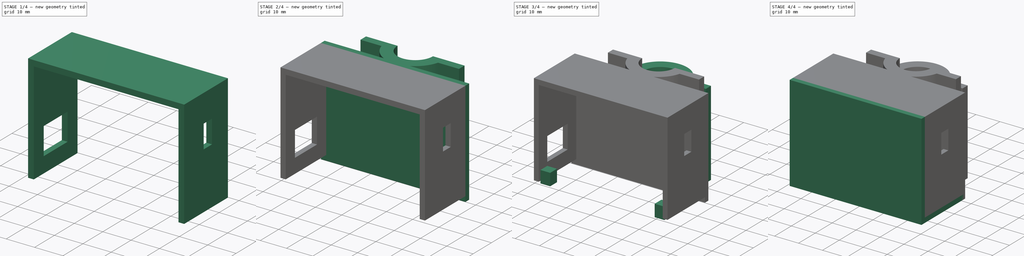
[diagram: build sequence overview — one tinted view per stage of 4, left to right]
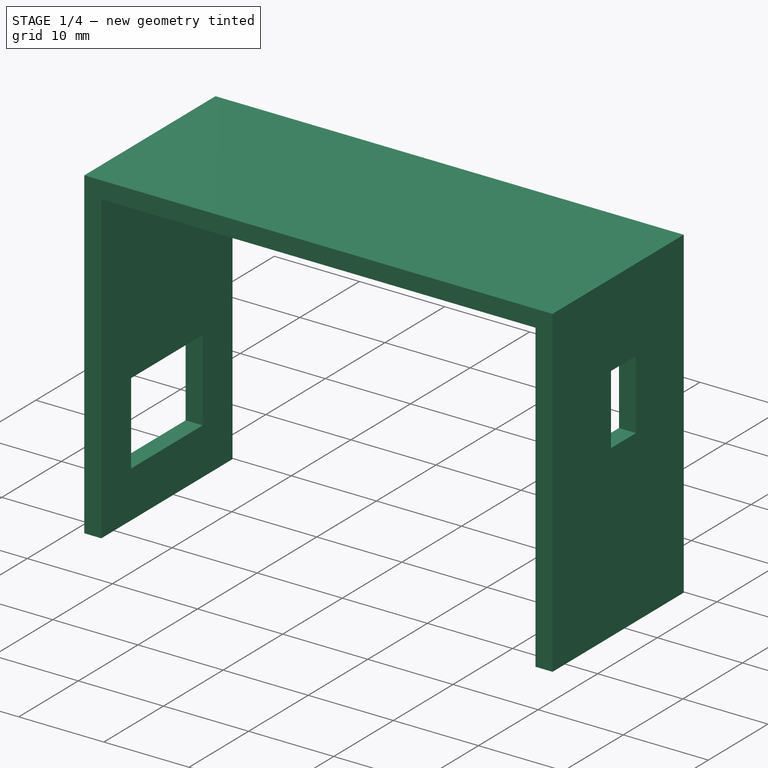
[diagram: stage 1 of 4 — iso view after this stage's code; geometry added in this stage tinted green]
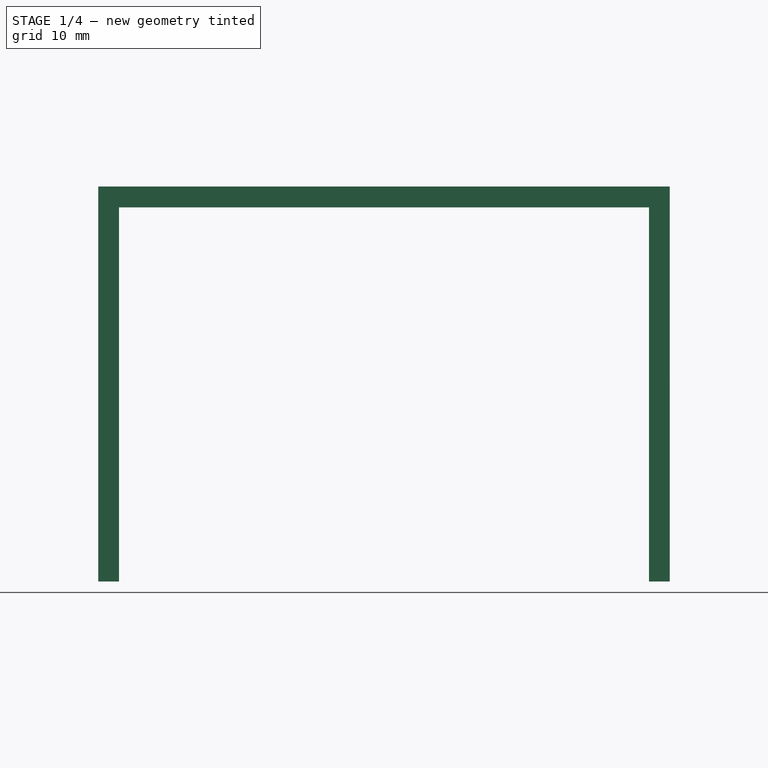
[diagram: stage 1 of 4 — front view after this stage's code; geometry added in this stage tinted green]
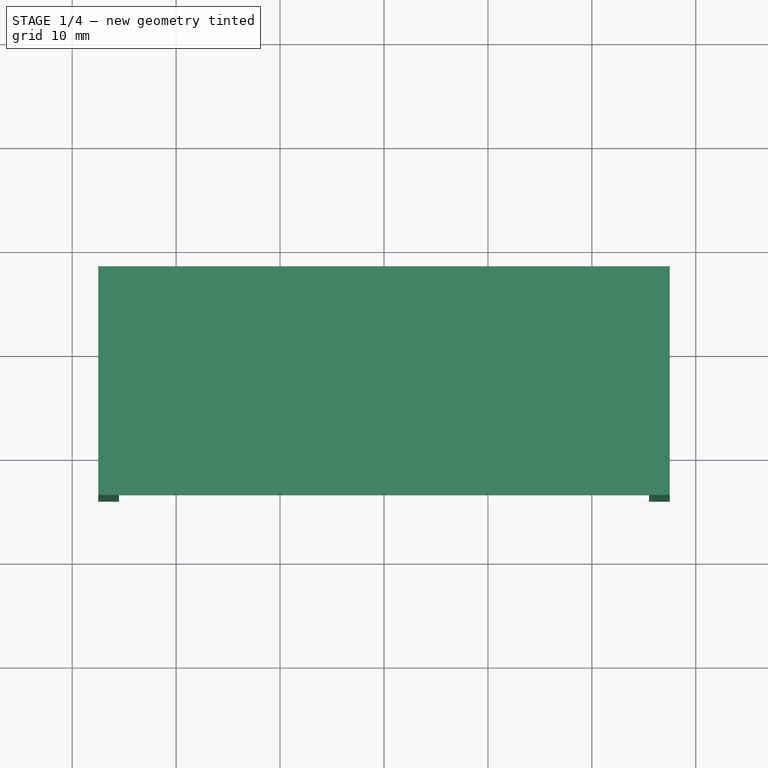
[diagram: stage 1 of 4 — top view after this stage's code; geometry added in this stage tinted green]
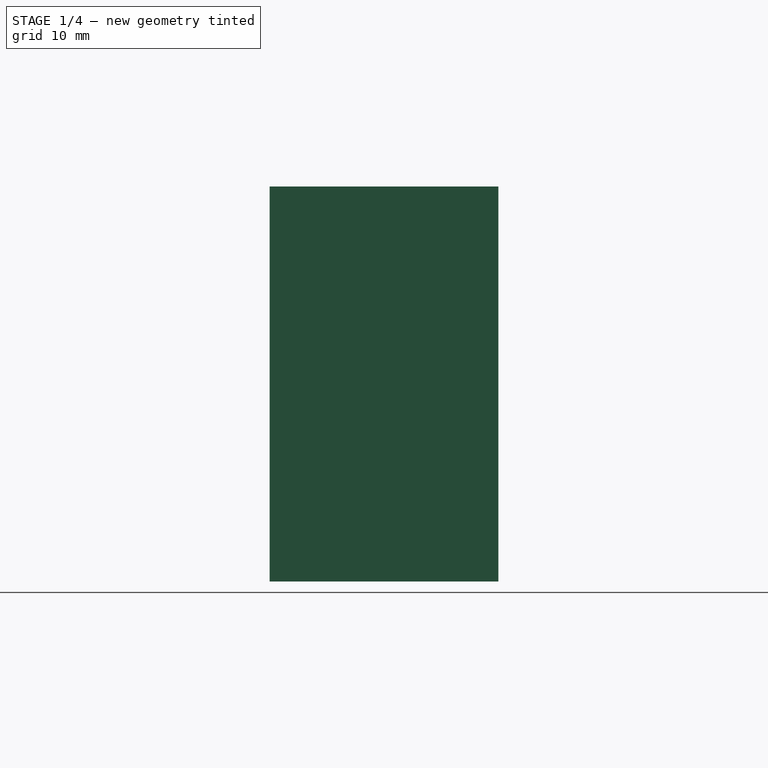
[diagram: stage 1 of 4 — right view after this stage's code; geometry added in this stage tinted green]
FCSTD DOCUMENT  (FreeCAD 0.14R3702 (Git))
Label: ikea lava lamp control box
License: CC-BY 3.0
LicenseURL: http://creativecommons.org/licenses/by/3.0/
objects: Sketcher::SketchObject×14, PartDesign::Pad×10, PartDesign::Pocket×3, App::DocumentObjectGroup×3
note: 40 computed .brp shape members not serialized (recipe doc carries the construction recipe); baked Part::Feature solids carry a one-line shape summary decoded from their .brp

FEATURE [App::DocumentObjectGroup] Group  label="Visible Stuff"
  Group = -> [Pad001,Pad002,Pad003,Pad004,Pad005,Pocket,Pocket002]
FEATURE [App::DocumentObjectGroup] Group001  label="Main"
  Group = -> [Pad,Pad006,Pocket001,Group]
FEATURE [Sketcher::SketchObject] Sketch011  label="cover bottom scetch"
  Placement = pos=(0,-23,38) rot=(0,0,1;0rad)
  sketch-geometry (4):
    g0: LineSegment StartX=-27.5 StartY=11 StartZ=0 EndX=27.5 EndY=11 EndZ=0
    g1: LineSegment StartX=27.5 StartY=11 StartZ=0 EndX=27.5 EndY=-11 EndZ=0
    g2: LineSegment StartX=27.5 StartY=-11 StartZ=0 EndX=-27.5 EndY=-11 EndZ=0
    g3: LineSegment StartX=-27.5 StartY=-11 StartZ=0 EndX=-27.5 EndY=11 EndZ=0
  constraints (12):
    c: Coincident(g0,g1)
    c: Coincident(g1,g2)
    c: Coincident(g2,g3)
    c: Coincident(g3,g0)
    c: Horizontal(g0)
    c: Horizontal(g2)
    c: Vertical(g1)
    c: Vertical(g3)
    c: DistanceY(g1) = -22
    c: DistanceX(g0) = 55
    c: Symmetric(g1,g0,g-1)
    c: Symmetric(g0,g0,g-2)
FEATURE [PartDesign::Pad] Pad007  label="cover bottom"
  Length = 2
  Length2 = 100
  Placement = pos=(0,-23,38) rot=(0,0,1;0rad)
  Sketch = -> Sketch011
  Type = 0
FEATURE [Sketcher::SketchObject] Sketch012  label="cover side usb sketch"
  Placement = pos=(25.5,-23,21) rot=(0.57735,0.57735,0.57735;2.0944rad)
  sketch-geometry (8):
    g0: LineSegment StartX=-11 StartY=19 StartZ=0 EndX=11 EndY=19 EndZ=0
    g1: LineSegment StartX=11 StartY=19 StartZ=0 EndX=11 EndY=-19 EndZ=0
    g2: LineSegment StartX=11 StartY=-19 StartZ=0 EndX=-11 EndY=-19 EndZ=0
    g3: LineSegment StartX=-11 StartY=-19 StartZ=0 EndX=-11 EndY=19 EndZ=0
    g4: LineSegment StartX=-1.2 StartY=9.2 StartZ=0 EndX=3 EndY=9.2 EndZ=0
    g5: LineSegment StartX=3 StartY=9.2 StartZ=0 EndX=3 EndY=1 EndZ=0
    g6: LineSegment StartX=-1.2 StartY=1 StartZ=0 EndX=-1.2 EndY=9.2 EndZ=0
    g7: LineSegment StartX=-1.2 StartY=1 StartZ=0 EndX=3 EndY=1 EndZ=0
  constraints (24):
    c: Coincident(g0,g1)
    c: Coincident(g1,g2)
    c: Coincident(g2,g3)
    c: Coincident(g3,g0)
    c: Horizontal(g0)
    c: Horizontal(g2)
    c: Vertical(g1)
    c: Vertical(g3)
    c: DistanceX(g2) = -22
    c: DistanceY(g1) = -38
    c: Symmetric(g1,g0,g-1)
    c: Symmetric(g1,g2,g-2)
    c: Coincident(g4,g5)
    c: Coincident(g6,g4)
    c: Horizontal(g4)
    c: Vertical(g5)
    c: Vertical(g6)
    c: DistanceY(g5,g1) = -20
    c: DistanceY(g5) = -8.2
    c: DistanceX(g5,g1) = 8
    c: DistanceX(g4) = 4.2
    c: Coincident(g7,g6)
    c: Coincident(g7,g5)
    c: Horizontal(g7)
FEATURE [PartDesign::Pad] Pad008  label="cover side usb"
  Length = 2
  Length2 = 100
  Placement = pos=(25.5,-23,21) rot=(0.57735,0.57735,0.57735;2.0944rad)
  Sketch = -> Sketch012
  Type = 0
FEATURE [Sketcher::SketchObject] Sketch013  label="cover side usb sketch001"
  Placement = pos=(25.5,-23,21) rot=(0.57735,0.57735,0.57735;2.0944rad)
  sketch-geometry (4):
    g0: LineSegment StartX=-11 StartY=19 StartZ=0 EndX=11 EndY=19 EndZ=0
    g1: LineSegment StartX=11 StartY=19 StartZ=0 EndX=11 EndY=-19 EndZ=0
    g2: LineSegment StartX=11 StartY=-19 StartZ=0 EndX=-11 EndY=-19 EndZ=0
    g3: LineSegment StartX=-11 StartY=-19 StartZ=0 EndX=-11 EndY=19 EndZ=0
  constraints (12):
    c: Coincident(g0,g1)
    c: Coincident(g1,g2)
    c: Coincident(g2,g3)
    c: Coincident(g3,g0)
    c: Horizontal(g0)
    c: Horizontal(g2)
    c: Vertical(g1)
    c: Vertical(g3)
    c: DistanceX(g2) = -22
    c: DistanceY(g1) = -38
    c: Symmetric(g1,g0,g-1)
    c: Symmetric(g1,g2,g-2)
FEATURE [App::DocumentObjectGroup] Group002  label="Cover"
  Group = -> [Sketch013]
FEATURE [Sketcher::SketchObject] Sketch014  label="cover side power sketch"
  Placement = pos=(-27.5,-23,21) rot=(0.57735,0.57735,0.57735;2.0944rad)
  sketch-geometry (8):
    g0: LineSegment StartX=-11 StartY=19 StartZ=0 EndX=11 EndY=19 EndZ=0
    g1: LineSegment StartX=11 StartY=19 StartZ=0 EndX=11 EndY=-19 EndZ=0
    g2: LineSegment StartX=11 StartY=-19 StartZ=0 EndX=-11 EndY=-19 EndZ=0
    g3: LineSegment StartX=-11 StartY=-19 StartZ=0 EndX=-11 EndY=19 EndZ=0
    g4: LineSegment StartX=-6 StartY=-3.9 StartZ=0 EndX=6 EndY=-3.9 EndZ=0
    g5: LineSegment StartX=6 StartY=-3.9 StartZ=0 EndX=6 EndY=-13.5 EndZ=0
    g6: LineSegment StartX=6 StartY=-13.5 StartZ=0 EndX=-6 EndY=-13.5 EndZ=0
    g7: LineSegment StartX=-6 StartY=-13.5 StartZ=0 EndX=-6 EndY=-3.9 EndZ=0
  constraints (24):
    c: Coincident(g0,g1)
    c: Coincident(g1,g2)
    c: Coincident(g2,g3)
    c: Coincident(g3,g0)
    c: Horizontal(g0)
    c: Horizontal(g2)
    c: Vertical(g1)
    c: Vertical(g3)
    c: DistanceX(g2) = -22
    c: DistanceY(g1) = -38
    c: Symmetric(g1,g0,g-1)
    c: Symmetric(g1,g2,g-2)
    c: Coincident(g4,g5)
    c: Coincident(g5,g6)
    c: Coincident(g6,g7)
    c: Coincident(g7,g4)
    c: Horizontal(g4)
    c: Horizontal(g6)
    c: Vertical(g5)
    c: Vertical(g7)
    c: DistanceY(g5,g1) = -5.5
    c: DistanceX(g5,g1) = 5
    c: DistanceY(g5) = -9.6
    c: DistanceX(g4) = 12
FEATURE [PartDesign::Pad] Pad009  label="cover side power"
  Length = 2
  Length2 = 100
  Placement = pos=(-27.5,-23,21) rot=(0.57735,0.57735,0.57735;2.0944rad)
  Sketch = -> Sketch014
  Type = 0
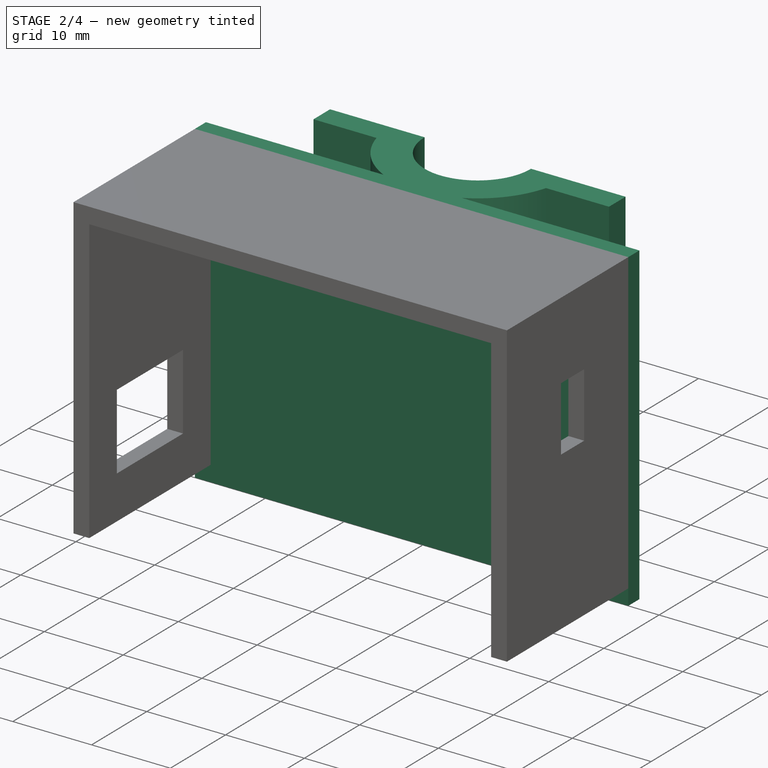
[diagram: stage 2 of 4 — iso view after this stage's code; geometry added in this stage tinted green]
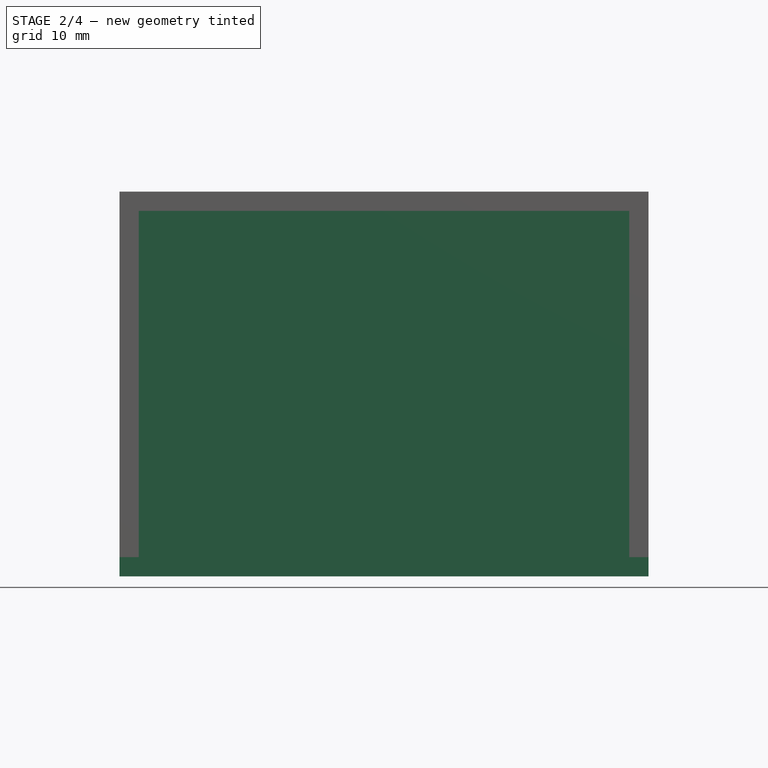
[diagram: stage 2 of 4 — front view after this stage's code; geometry added in this stage tinted green]
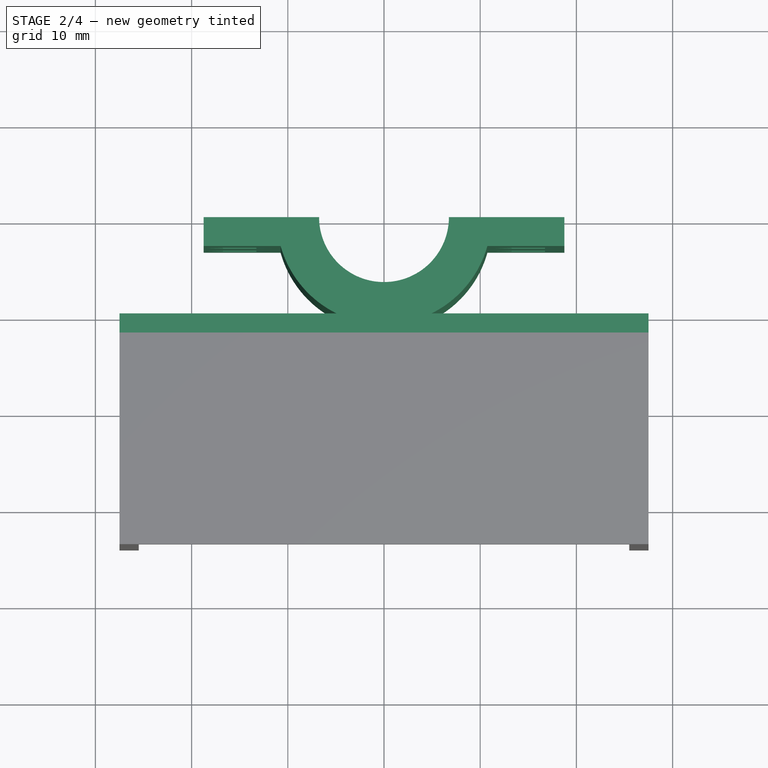
[diagram: stage 2 of 4 — top view after this stage's code; geometry added in this stage tinted green]
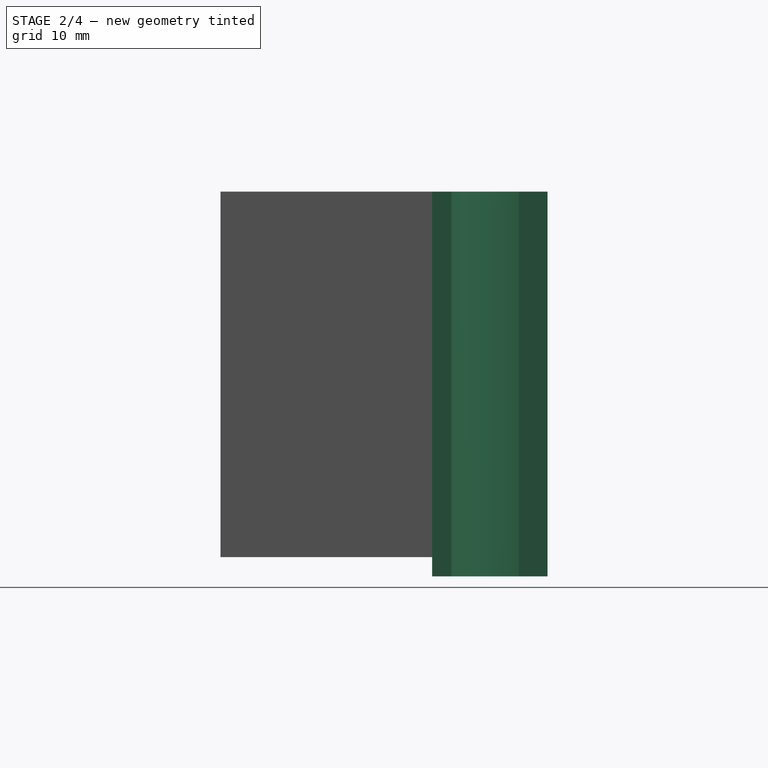
[diagram: stage 2 of 4 — right view after this stage's code; geometry added in this stage tinted green]
FEATURE [Sketcher::SketchObject] Sketch006  label="mounting screw holes"
  Placement = pos=(0,4,0) rot=(0,0.707107,0.707107;3.14159rad)
  Support = -> Pad [Face4]
  sketch-geometry (8):
    g0: Circle CenterX=15 CenterY=8.75 CenterZ=0 NormalX=0 NormalY=0 NormalZ=1 Radius=2
    g1: Circle CenterX=-15 CenterY=8.75 CenterZ=0 NormalX=0 NormalY=0 NormalZ=1 Radius=2
    g2: Circle CenterX=-15 CenterY=26.25 CenterZ=0 NormalX=0 NormalY=0 NormalZ=1 Radius=2
    g3: Circle CenterX=15 CenterY=26.25 CenterZ=0 NormalX=0 NormalY=0 NormalZ=1 Radius=2
    g4: LineSegment [constr] StartX=-15 StartY=26.25 StartZ=0 EndX=15 EndY=26.25 EndZ=0
    g5: LineSegment [constr] StartX=15 StartY=26.25 StartZ=0 EndX=15 EndY=8.75 EndZ=0
    g6: LineSegment [constr] StartX=15 StartY=8.75 StartZ=0 EndX=-15 EndY=8.75 EndZ=0
    g7: LineSegment [constr] StartX=-15 StartY=8.75 StartZ=0 EndX=-15 EndY=26.25 EndZ=0
  constraints (20):
    c: Coincident(g4,g5)
    c: Coincident(g5,g6)
    c: Coincident(g6,g7)
    c: Coincident(g7,g4)
    c: Horizontal(g4)
    c: Horizontal(g6)
    c: Vertical(g5)
    c: Vertical(g7)
    c: Symmetric(g5,g6,g-2)
    c: Coincident(g3,g4)
    c: Coincident(g0,g5)
    c: Coincident(g2,g4)
    c: Coincident(g1,g6)
    c: Equal(g3,g2)
    c: Equal(g2,g1)
    c: Equal(g1,g0)
    c: Radius(g3) = 2
    c: DistanceY(g5) = -17.5
    c: DistanceY(g-1,g0) = 8.75
    c: DistanceX(g6) = -30
FEATURE [PartDesign::Pad] Pad006  label="mount side pad"
  Length = 40
  Length2 = 100
  Sketch = -> Sketch001
  Type = 0
FEATURE [Sketcher::SketchObject] Sketch009  label="mounting screw holes001"
  Placement = pos=(0,-3,0) rot=(1,0,0;1.5708rad)
  Support = -> Pad006 [Face11]
  sketch-geometry (8):
    g0: Circle CenterX=15 CenterY=8.75 CenterZ=0 NormalX=0 NormalY=0 NormalZ=1 Radius=2
    g1: Circle CenterX=-15 CenterY=8.75 CenterZ=0 NormalX=0 NormalY=0 NormalZ=1 Radius=2
    g2: Circle CenterX=-15 CenterY=26.25 CenterZ=0 NormalX=0 NormalY=0 NormalZ=1 Radius=2
    g3: Circle CenterX=15 CenterY=26.25 CenterZ=0 NormalX=0 NormalY=0 NormalZ=1 Radius=2
    g4: LineSegment [constr] StartX=-15 StartY=26.25 StartZ=0 EndX=15 EndY=26.25 EndZ=0
    g5: LineSegment [constr] StartX=15 StartY=26.25 StartZ=0 EndX=15 EndY=8.75 EndZ=0
    g6: LineSegment [constr] StartX=15 StartY=8.75 StartZ=0 EndX=-15 EndY=8.75 EndZ=0
    g7: LineSegment [constr] StartX=-15 StartY=8.75 StartZ=0 EndX=-15 EndY=26.25 EndZ=0
  constraints (20):
    c: Coincident(g4,g5)
    c: Coincident(g5,g6)
    c: Coincident(g6,g7)
    c: Coincident(g7,g4)
    c: Horizontal(g4)
    c: Horizontal(g6)
    c: Vertical(g5)
    c: Vertical(g7)
    c: Symmetric(g5,g6,g-2)
    c: Coincident(g3,g4)
    c: Coincident(g0,g5)
    c: Coincident(g2,g4)
    c: Coincident(g1,g6)
    c: Equal(g3,g2)
    c: Equal(g2,g1)
    c: Equal(g1,g0)
    c: Radius(g3) = 2
    c: DistanceY(g5) = -17.5
    c: DistanceY(g-1,g0) = 8.75
    c: DistanceX(g6) = -30
FEATURE [PartDesign::Pocket] Pocket001  label="mount side pocket"
  Length = 3
  Sketch = -> Sketch009
  Type = 0
FEATURE [Sketcher::SketchObject] Sketch010  label="mounting nuts"
  Placement = pos=(0,-3,0) rot=(1,0,0;1.5708rad)
  Support = -> Pocket001 [Face9]
  sketch-geometry (32):
    g0: Circle [constr] CenterX=15 CenterY=8.75 CenterZ=0 NormalX=0 NormalY=0 NormalZ=1 Radius=3
    g1: Circle [constr] CenterX=-15 CenterY=8.75 CenterZ=0 NormalX=0 NormalY=0 NormalZ=1 Radius=3
    g2: Circle [constr] CenterX=-15 CenterY=26.25 CenterZ=0 NormalX=0 NormalY=0 NormalZ=1 Radius=3
    g3: Circle [constr] CenterX=15 CenterY=26.25 CenterZ=0 NormalX=0 NormalY=0 NormalZ=1 Radius=3
    g4: LineSegment [constr] StartX=-15 StartY=26.25 StartZ=0 EndX=15 EndY=26.25 EndZ=0
    g5: LineSegment [constr] StartX=15 StartY=26.25 StartZ=0 EndX=15 EndY=8.75 EndZ=0
    g6: LineSegment [constr] StartX=15 StartY=8.75 StartZ=0 EndX=-15 EndY=8.75 EndZ=0
    g7: LineSegment [constr] StartX=-15 StartY=8.75 StartZ=0 EndX=-15 EndY=26.25 EndZ=0
    g8: LineSegment StartX=-16.7321 StartY=29.25 StartZ=0 EndX=-13.2679 EndY=29.25 EndZ=0
    g9: LineSegment StartX=-13.2679 StartY=29.25 StartZ=0 EndX=-11.5359 EndY=26.25 EndZ=0
    g10: LineSegment StartX=-11.5359 StartY=26.25 StartZ=0 EndX=-13.2679 EndY=23.25 EndZ=0
    g11: LineSegment StartX=-13.2679 StartY=23.25 StartZ=0 EndX=-16.7321 EndY=23.25 EndZ=0
    g12: LineSegment StartX=-16.7321 StartY=23.25 StartZ=0 EndX=-18.4641 EndY=26.25 EndZ=0
    g13: LineSegment StartX=-18.4641 StartY=26.25 StartZ=0 EndX=-16.7321 EndY=29.25 EndZ=0
    g14: LineSegment StartX=11.5359 StartY=26.25 StartZ=0 EndX=13.2679 EndY=29.25 EndZ=0
    g15: LineSegment StartX=13.2679 StartY=29.25 StartZ=0 EndX=16.7321 EndY=29.25 EndZ=0
    g16: LineSegment StartX=16.7321 StartY=29.25 StartZ=0 EndX=18.4641 EndY=26.25 EndZ=0
    g17: LineSegment StartX=18.4641 StartY=26.25 StartZ=0 EndX=16.7321 EndY=23.25 EndZ=0
    g18: LineSegment StartX=16.7321 StartY=23.25 StartZ=0 EndX=13.2679 EndY=23.25 EndZ=0
    g19: LineSegment StartX=13.2679 StartY=23.25 StartZ=0 EndX=11.5359 EndY=26.25 EndZ=0
    g20: LineSegment StartX=13.2679 StartY=11.75 StartZ=0 EndX=16.7321 EndY=11.75 EndZ=0
    g21: LineSegment StartX=16.7321 StartY=11.75 StartZ=0 EndX=18.4641 EndY=8.75 EndZ=0
    g22: LineSegment StartX=18.4641 StartY=8.75 StartZ=0 EndX=16.7321 EndY=5.75 EndZ=0
    g23: LineSegment StartX=16.7321 StartY=5.75 StartZ=0 EndX=13.2679 EndY=5.75 EndZ=0
    g24: LineSegment StartX=13.2679 StartY=5.75 StartZ=0 EndX=11.5359 EndY=8.75 EndZ=0
    g25: LineSegment StartX=11.5359 StartY=8.75 StartZ=0 EndX=13.2679 EndY=11.75 EndZ=0
    g26: LineSegment StartX=-11.5359 StartY=8.75 StartZ=0 EndX=-13.2679 EndY=11.75 EndZ=0
    g27: LineSegment StartX=-13.2679 StartY=11.75 StartZ=0 EndX=-16.7321 EndY=11.75 EndZ=0
    g28: LineSegment StartX=-16.7321 StartY=11.75 StartZ=0 EndX=-18.4641 EndY=8.75 EndZ=0
    g29: LineSegment StartX=-18.4641 StartY=8.75 StartZ=0 EndX=-16.7321 EndY=5.75 EndZ=0
    g30: LineSegment StartX=-16.7321 StartY=5.75 StartZ=0 EndX=-13.2679 EndY=5.75 EndZ=0
    g31: LineSegment StartX=-13.2679 StartY=5.75 StartZ=0 EndX=-11.5359 EndY=8.75 EndZ=0
  constraints (94):
    c: Coincident(g4,g5)
    c: Coincident(g5,g6)
    c: Coincident(g6,g7)
    c: Coincident(g7,g4)
    c: Horizontal(g4)
    c: Vertical(g5)
    c: Vertical(g7)
    c: Symmetric(g5,g6,g-2)
    c: Coincident(g3,g4)
    c: Coincident(g0,g5)
    c: Coincident(g2,g4)
    c: Coincident(g1,g6)
    c: Equal(g3,g2)
    c: Equal(g2,g1)
    c: Equal(g1,g0)
    c: Radius(g3) = 3
    c: DistanceY(g5) = -17.5
    c: DistanceY(g-1,g0) = 8.75
    c: DistanceX(g6) = -30
    c: Horizontal(g8)
    c: Tangent(g8,g2)
    c: Coincident(g8,g9)
    c: PointOnObject(g9,g4)
    c: Tangent(g9,g2)
    c: Coincident(g9,g10)
    c: Tangent(g10,g2)
    c: Coincident(g10,g11)
    c: Tangent(g11,g3)
    c: Coincident(g11,g12)
    c: Tangent(g12,g2)
    c: Coincident(g12,g13)
    c: Coincident(g13,g8)
    c: Tangent(g13,g2)
    c: Equal(g8,g13)
    c: Equal(g13,g12)
    c: Equal(g12,g11)
    c: Equal(g11,g10)
    c: Equal(g10,g9)
    c: Tangent(g14,g3)
    c: Coincident(g14,g15)
    c: Tangent(g15,g2)
    c: Coincident(g15,g16)
    c: Tangent(g16,g3)
    c: Coincident(g16,g17)
    c: Tangent(g17,g3)
    c: Coincident(g17,g18)
    c: Horizontal(g18)
    c: Tangent(g18,g2)
    c: Coincident(g18,g19)
    c: Coincident(g19,g14)
    c: Tangent(g19,g3)
    c: Equal(g18,g17)
    c: Equal(g17,g16)
    c: Equal(g16,g15)
    c: Equal(g15,g14)
    c: Equal(g14,g19)
    c: Horizontal(g20)
    c: Tangent(g20,g1)
    c: Coincident(g20,g21)
    c: Tangent(g21,g0)
    c: Coincident(g21,g22)
    c: Tangent(g22,g0)
    c: Coincident(g22,g23)
    c: Tangent(g23,g0)
    c: Coincident(g23,g24)
    c: PointOnObject(g24,g6)
    c: Tangent(g24,g0)
    c: Coincident(g24,g25)
    c: Coincident(g25,g20)
    c: Tangent(g25,g0)
    c: Equal(g23,g22)
    c: Equal(g22,g21)
    c: Equal(g21,g20)
    c: Equal(g20,g25)
    c: Equal(g25,g24)
    c: Tangent(g26,g1)
    c: Coincident(g26,g27)
    c: Horizontal(g27)
    c: Tangent(g27,g1)
    c: Coincident(g27,g28)
    c: Tangent(g28,g1)
    c: Coincident(g28,g29)
    c: Tangent(g29,g1)
    c: Coincident(g29,g30)
    c: Horizontal(g30)
    c: Tangent(g30,g0)
    c: Coincident(g30,g31)
    c: Tangent(g31,g1)
    c: Coincident(g31,g26)
    c: Equal(g31,g26)
    c: Equal(g26,g27)
    c: Equal(g27,g28)
    c: Equal(g28,g29)
    c: Equal(g29,g30)
FEATURE [PartDesign::Pocket] Pocket002
  Length = 2
  Sketch = -> Sketch010
  Type = 0
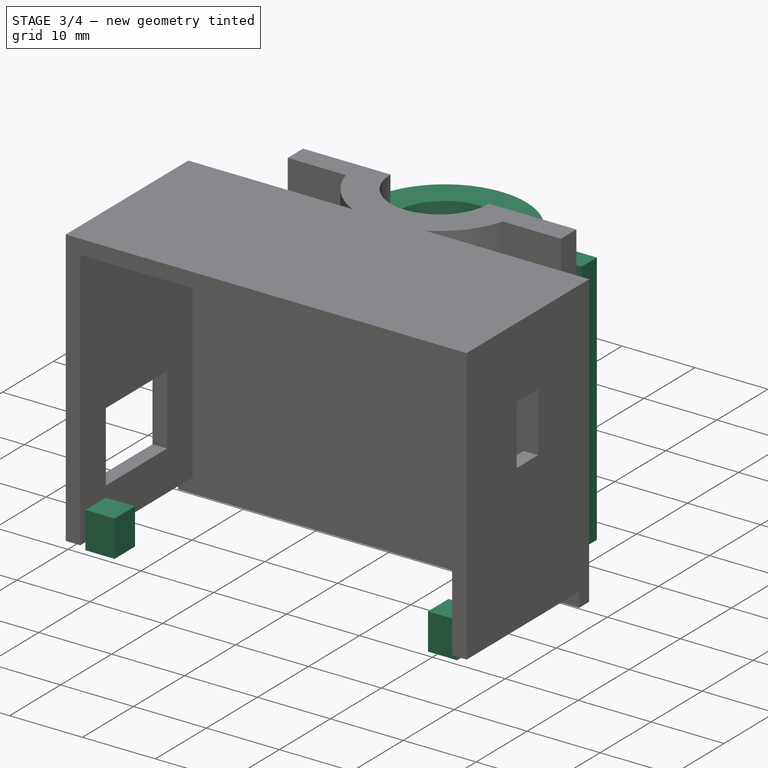
[diagram: stage 3 of 4 — iso view after this stage's code; geometry added in this stage tinted green]
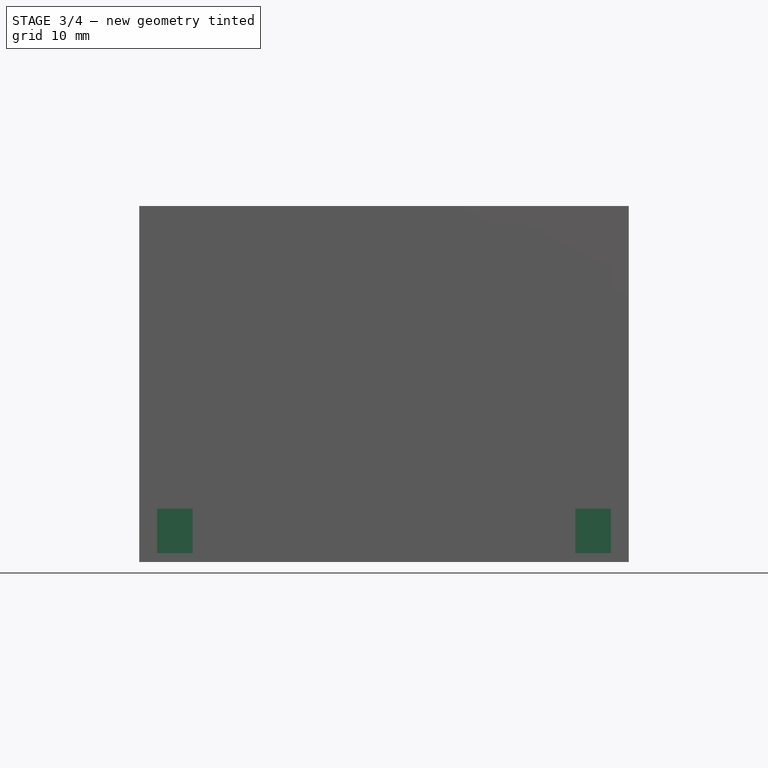
[diagram: stage 3 of 4 — front view after this stage's code; geometry added in this stage tinted green]
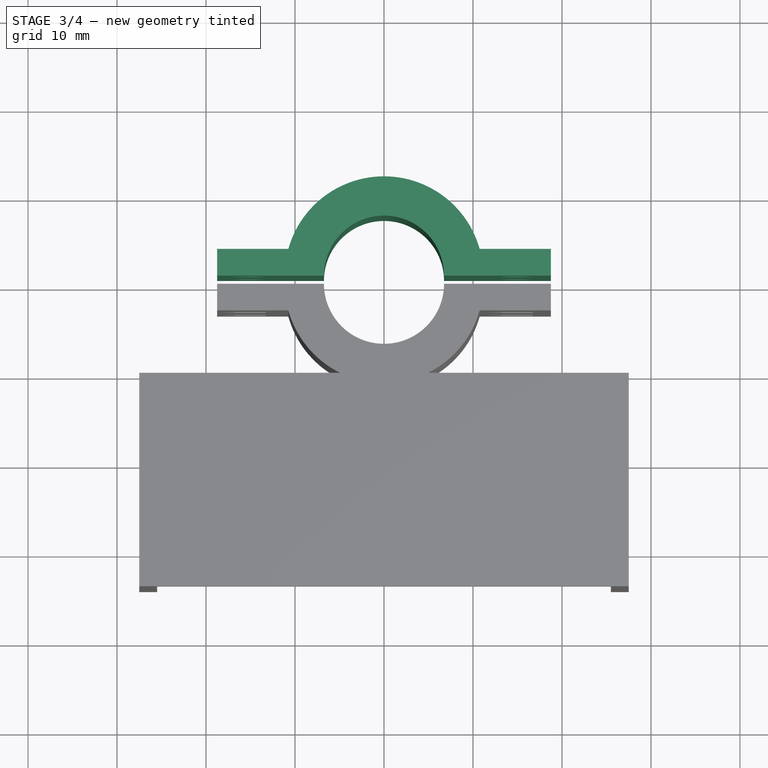
[diagram: stage 3 of 4 — top view after this stage's code; geometry added in this stage tinted green]
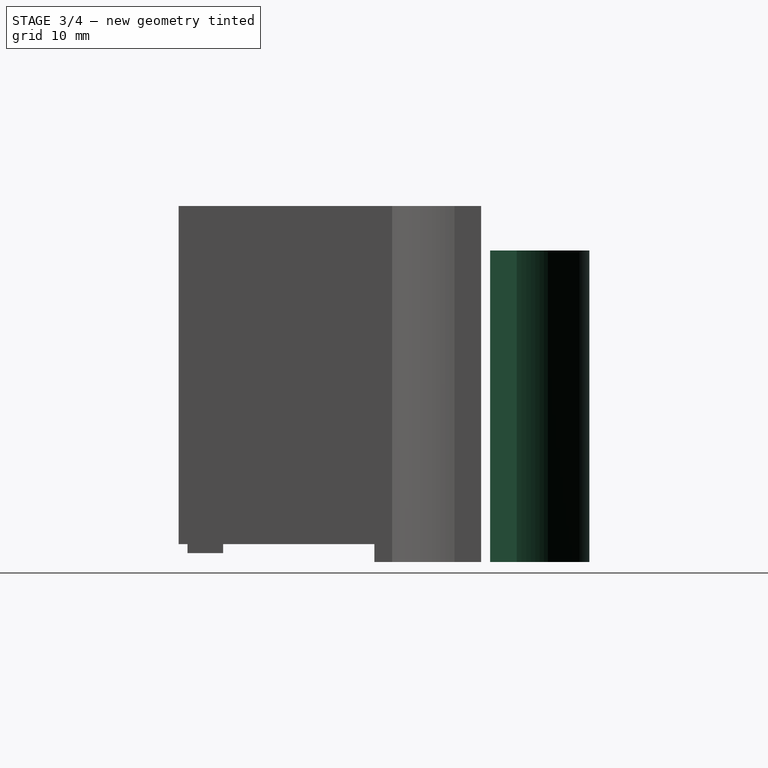
[diagram: stage 3 of 4 — right view after this stage's code; geometry added in this stage tinted green]
FEATURE [Sketcher::SketchObject] Sketch004
  Placement = pos=(-23.5,-31,1) rot=(0,0,1;0rad)
  sketch-geometry (4):
    g0: LineSegment StartX=-2 StartY=2 StartZ=0 EndX=2 EndY=2 EndZ=0
    g1: LineSegment StartX=2 StartY=2 StartZ=0 EndX=2 EndY=-2 EndZ=0
    g2: LineSegment StartX=2 StartY=-2 StartZ=0 EndX=-2 EndY=-2 EndZ=0
    g3: LineSegment StartX=-2 StartY=-2 StartZ=0 EndX=-2 EndY=2 EndZ=0
  constraints (12):
    c: Coincident(g0,g1)
    c: Coincident(g1,g2)
    c: Coincident(g2,g3)
    c: Coincident(g3,g0)
    c: Horizontal(g0)
    c: Horizontal(g2)
    c: Vertical(g1)
    c: Vertical(g3)
    c: Equal(g0,g1)
    c: DistanceX(g0) = 4
    c: Symmetric(g1,g0,g-1)
    c: Symmetric(g0,g0,g-2)
FEATURE [PartDesign::Pad] Pad004  label="screw right"
  Length = 5
  Length2 = 100
  Placement = pos=(-23.5,-31,1) rot=(0,0,1;0rad)
  Sketch = -> Sketch004
  Type = 0
FEATURE [Sketcher::SketchObject] Sketch005
  Placement = pos=(23.5,-31,1) rot=(0,0,1;0rad)
  sketch-geometry (4):
    g0: LineSegment StartX=-2 StartY=2 StartZ=0 EndX=2 EndY=2 EndZ=0
    g1: LineSegment StartX=2 StartY=2 StartZ=0 EndX=2 EndY=-2 EndZ=0
    g2: LineSegment StartX=2 StartY=-2 StartZ=0 EndX=-2 EndY=-2 EndZ=0
    g3: LineSegment StartX=-2 StartY=-2 StartZ=0 EndX=-2 EndY=2 EndZ=0
  constraints (12):
    c: Coincident(g0,g1)
    c: Coincident(g1,g2)
    c: Coincident(g2,g3)
    c: Coincident(g3,g0)
    c: Horizontal(g0)
    c: Horizontal(g2)
    c: Vertical(g1)
    c: Vertical(g3)
    c: Equal(g0,g1)
    c: DistanceX(g0) = 4
    c: Symmetric(g1,g0,g-1)
    c: Symmetric(g0,g0,g-2)
FEATURE [PartDesign::Pad] Pad005  label="screw left"
  Length = 5
  Length2 = 100
  Placement = pos=(23.5,-31,1) rot=(0,0,1;0rad)
  Sketch = -> Sketch005
  Type = 0
FEATURE [Sketcher::SketchObject] Sketch008  label="mount clip"
  Placement = pos=(0,1,0) rot=(0,0,1;0rad)
  sketch-geometry (8):
    g0: LineSegment StartX=6.75 StartY=0 StartZ=0 EndX=18.75 EndY=0 EndZ=0
    g1: LineSegment StartX=18.75 StartY=0 StartZ=0 EndX=18.75 EndY=3 EndZ=0
    g2: LineSegment StartX=18.75 StartY=3 StartZ=0 EndX=10.75 EndY=3 EndZ=0
    g3: LineSegment StartX=-6.75 StartY=0 StartZ=0 EndX=-18.75 EndY=0 EndZ=0
    g4: LineSegment StartX=-18.75 StartY=0 StartZ=0 EndX=-18.75 EndY=3 EndZ=0
    g5: LineSegment StartX=-18.75 StartY=3 StartZ=0 EndX=-10.75 EndY=3 EndZ=0
    g6: ArcOfCircle CenterX=0 CenterY=0 CenterZ=0 NormalX=0 NormalY=0 NormalZ=1 Radius=6.75 StartAngle=0 EndAngle=3.14159
    g7: ArcOfCircle CenterX=0 CenterY=0 CenterZ=0 NormalX=0 NormalY=0 NormalZ=1 Radius=11.1608 StartAngle=0.272146 EndAngle=2.86945
  constraints (25):
    c: Coincident(g0,g1)
    c: Coincident(g1,g2)
    c: Horizontal(g0)
    c: Horizontal(g2)
    c: Vertical(g1)
    c: PointOnObject(g0,g-1)
    c: Coincident(g3,g4)
    c: Coincident(g4,g5)
    c: Horizontal(g3)
    c: Horizontal(g5)
    c: Vertical(g4)
    c: Symmetric(g0,g3,g-2)
    c: Coincident(g6,g-1)
    c: PointOnObject(g6,g3)
    c: PointOnObject(g6,g0)
    c: Coincident(g6,g3)
    c: Coincident(g7,g-1)
    c: DistanceY(g1) = 3
    c: Equal(g3,g0)
    c: DistanceX(g3,g0) = 13.5
    c: Equal(g4,g1)
    c: Coincident(g7,g2)
    c: Coincident(g7,g5)
    c: DistanceX(g5,g3) = 4
    c: DistanceX(g2,g1) = 8
FEATURE [PartDesign::Pad] Pad  label="mount clip001"
  Length = 35
  Length2 = 100
  Placement = pos=(0,1,0) rot=(0,0,1;0rad)
  Sketch = -> Sketch008
  Type = 0
FEATURE [PartDesign::Pocket] Pocket  label="mount clip pocket"
  Length = 3
  Placement = pos=(0,1,0) rot=(0,0,1;0rad)
  Sketch = -> Sketch006
  Type = 0
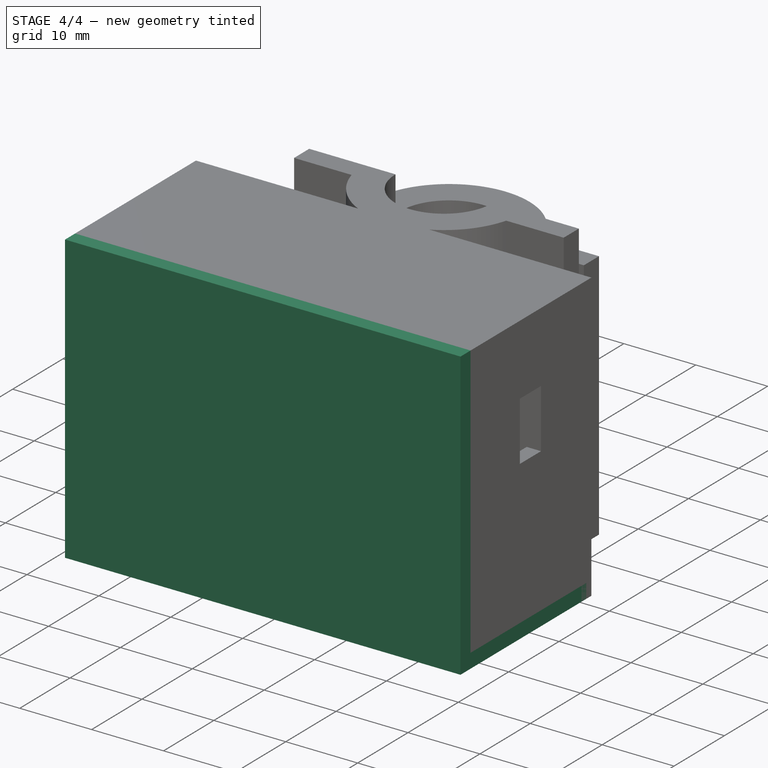
[diagram: stage 4 of 4 — iso view after this stage's code; geometry added in this stage tinted green]
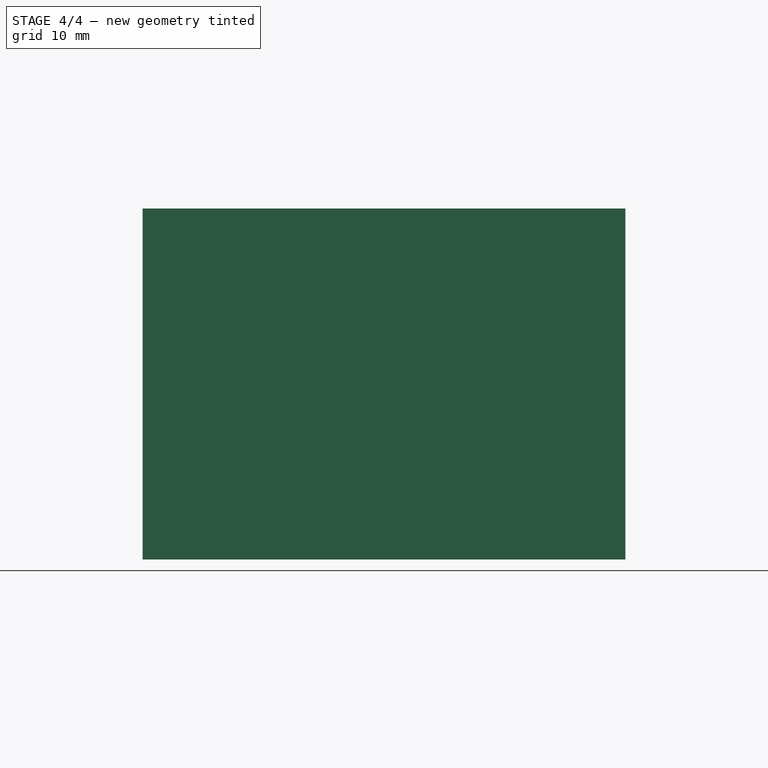
[diagram: stage 4 of 4 — front view after this stage's code; geometry added in this stage tinted green]
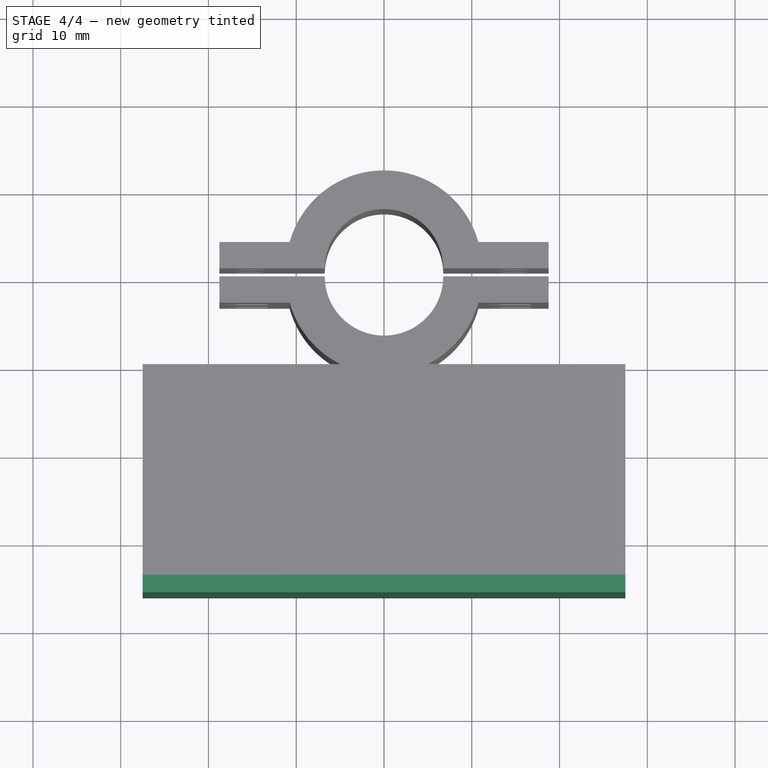
[diagram: stage 4 of 4 — top view after this stage's code; geometry added in this stage tinted green]
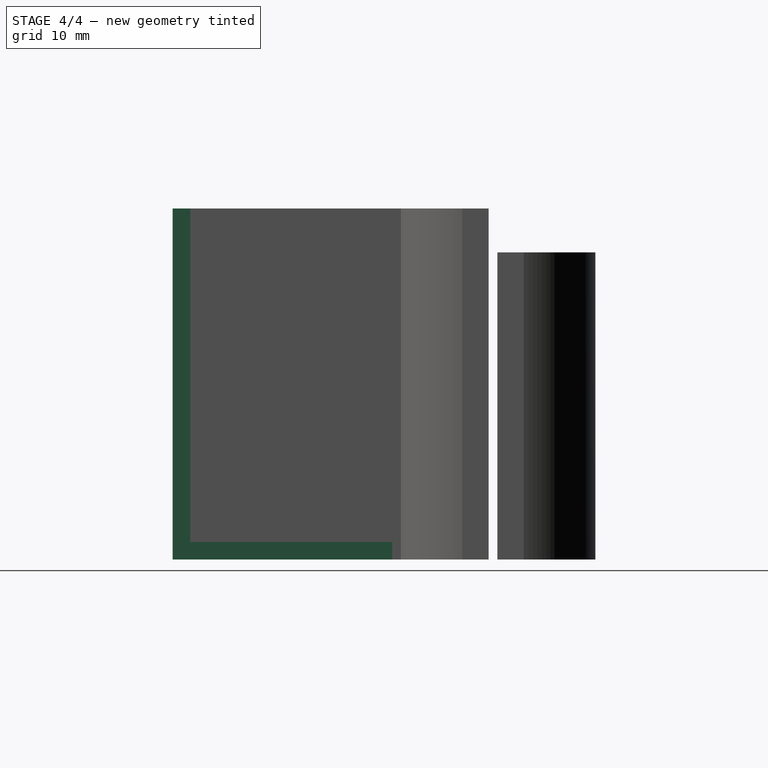
[diagram: stage 4 of 4 — right view after this stage's code; geometry added in this stage tinted green]
FEATURE [Sketcher::SketchObject] Sketch001  label="mount side"
  sketch-geometry (15):
    g0: LineSegment StartX=-6.75 StartY=0 StartZ=0 EndX=-18.75 EndY=0 EndZ=0
    g1: LineSegment StartX=6.75 StartY=0 StartZ=0 EndX=18.75 EndY=0 EndZ=0
    g2: LineSegment StartX=-18.75 StartY=0 StartZ=0 EndX=-18.75 EndY=-3 EndZ=0
    g3: LineSegment StartX=18.75 StartY=0 StartZ=0 EndX=18.75 EndY=-3 EndZ=0
    g4: LineSegment StartX=-18.75 StartY=-3 StartZ=0 EndX=-10.75 EndY=-3 EndZ=0
    g5: LineSegment StartX=18.75 StartY=-3 StartZ=0 EndX=10.75 EndY=-3 EndZ=0
    g6: LineSegment [constr] StartX=-6.75 StartY=0 StartZ=0 EndX=6.75 EndY=0 EndZ=0
    g7: ArcOfCircle CenterX=0 CenterY=0 CenterZ=0 NormalX=0 NormalY=0 NormalZ=1 Radius=6.75 StartAngle=3.14159 EndAngle=6.28319
    g8: ArcOfCircle CenterX=0 CenterY=0 CenterZ=0 NormalX=0 NormalY=0 NormalZ=1 Radius=11.1608 StartAngle=3.41374 EndAngle=4.25226
    g9: LineSegment StartX=-27.5 StartY=-10 StartZ=0 EndX=-4.95606 EndY=-10 EndZ=0
    g10: LineSegment StartX=27.5 StartY=-10 StartZ=0 EndX=27.5 EndY=-12 EndZ=0
    g11: LineSegment StartX=27.5 StartY=-12 StartZ=0 EndX=-27.5 EndY=-12 EndZ=0
    g12: LineSegment StartX=-27.5 StartY=-12 StartZ=0 EndX=-27.5 EndY=-10 EndZ=0
    g13: LineSegment StartX=4.95606 StartY=-10 StartZ=0 EndX=27.5 EndY=-10 EndZ=0
    g14: ArcOfCircle CenterX=0 CenterY=0 CenterZ=0 NormalX=0 NormalY=0 NormalZ=1 Radius=11.1608 StartAngle=5.17251 EndAngle=6.01104
  constraints (45):
    c: Horizontal(g0)
    c: Horizontal(g1)
    c: Vertical(g2)
    c: Coincident(g3,g1)
    c: Vertical(g3)
    c: Coincident(g2,g0)
    c: Coincident(g4,g2)
    c: Horizontal(g4)
    c: Coincident(g5,g3)
    c: Horizontal(g5)
    c: Symmetric(g0,g1,g-2)
    c: Equal(g1,g0)
    c: Equal(g5,g4)
    c: Equal(g3,g2)
    c: DistanceY(g3) = -3
    c: DistanceX(g5) = -8
    c: Coincident(g6,g0)
    c: Coincident(g6,g1)
    c: PointOnObject(g7,g6)
    c: Coincident(g7,g1)
    c: Coincident(g7,g0)
    c: DistanceX(g1,g0) = -13.5
    c: PointOnObject(g8,g6)
    c: Coincident(g8,g4)
    c: Coincident(g14,g5)
    c: Coincident(g13,g10)
    c: Coincident(g10,g11)
    c: Coincident(g11,g12)
    c: Coincident(g12,g9)
    c: Horizontal(g9)
    c: Horizontal(g11)
    c: Vertical(g10)
    c: Vertical(g12)
    c: Symmetric(g10,g11,g-2)
    c: DistanceY(g10) = -2
    c: PointOnObject(g13,g8)
    c: Tangent(g9,g13)
    c: Equal(g8,g14)
    c: Coincident(g8,g9)
    c: Coincident(g8,g14)
    c: PointOnObject(g14,g13)
    c: DistanceY(g8,g4) = 7
    c: DistanceX(g11) = -55
    c: DistanceX(g4,g0) = 4
    c: PointOnObject(g-1,g6)
FEATURE [Sketcher::SketchObject] Sketch  label="top sketch"
  Placement = pos=(0,-23,0) rot=(0,0,1;0rad)
  sketch-geometry (10):
    g0: LineSegment StartX=-27.5 StartY=12 StartZ=0 EndX=27.5 EndY=12 EndZ=0
    g1: LineSegment StartX=27.5 StartY=12 StartZ=0 EndX=27.5 EndY=-12 EndZ=0
    g2: LineSegment StartX=27.5 StartY=-12 StartZ=0 EndX=-27.5 EndY=-12 EndZ=0
    g3: LineSegment StartX=-27.5 StartY=-12 StartZ=0 EndX=-27.5 EndY=12 EndZ=0
    g4: Circle CenterX=17.5 CenterY=0 CenterZ=0 NormalX=0 NormalY=0 NormalZ=1 Radius=3.5
    g5: Circle CenterX=-4.5 CenterY=0 CenterZ=0 NormalX=0 NormalY=0 NormalZ=1 Radius=3.5
    g6: LineSegment StartX=-3 StartY=11 StartZ=0 EndX=3 EndY=11 EndZ=0
    g7: LineSegment StartX=3 StartY=11 StartZ=0 EndX=3 EndY=9 EndZ=0
    g8: LineSegment StartX=3 StartY=9 StartZ=0 EndX=-3 EndY=9 EndZ=0
    g9: LineSegment StartX=-3 StartY=9 StartZ=0 EndX=-3 EndY=11 EndZ=0
  constraints (30):
    c: Coincident(g0,g1)
    c: Coincident(g1,g2)
    c: Coincident(g2,g3)
    c: Coincident(g3,g0)
    c: Horizontal(g0)
    c: Horizontal(g2)
    c: Vertical(g1)
    c: Vertical(g3)
    c: Symmetric(g0,g0,g-2)
    c: DistanceY(g1) = -24
    c: DistanceX(g0) = 55
    c: Symmetric(g1,g0,g-1)
    c: PointOnObject(g4,g-1)
    c: DistanceX(g4,g1) = 10
    c: Radius(g4) = 3.5
    c: PointOnObject(g5,g-1)
    c: Equal(g5,g4)
    c: DistanceX(g5,g4) = 22
    c: Coincident(g6,g7)
    c: Coincident(g7,g8)
    c: Coincident(g8,g9)
    c: Coincident(g9,g6)
    c: Horizontal(g6)
    c: Horizontal(g8)
    c: Vertical(g7)
    c: Vertical(g9)
    c: DistanceX(g6) = 6
    c: DistanceY(g7) = -2
    c: Symmetric(g6,g6,g-2)
    c: DistanceY(g6,g0) = 1
FEATURE [PartDesign::Pad] Pad001  label="top"
  Length = 2
  Length2 = 100
  Placement = pos=(0,-23,0) rot=(0,0,1;0rad)
  Sketch = -> Sketch
  Type = 0
FEATURE [Sketcher::SketchObject] Sketch002  label="side opposite mount sketch"
  Placement = pos=(0,-35,0) rot=(0,0,1;0rad)
  sketch-geometry (4):
    g0: LineSegment StartX=-27.5 StartY=1 StartZ=0 EndX=27.5 EndY=1 EndZ=0
    g1: LineSegment StartX=27.5 StartY=1 StartZ=0 EndX=27.5 EndY=-1 EndZ=0
    g2: LineSegment StartX=27.5 StartY=-1 StartZ=0 EndX=-27.5 EndY=-1 EndZ=0
    g3: LineSegment StartX=-27.5 StartY=-1 StartZ=0 EndX=-27.5 EndY=1 EndZ=0
  constraints (12):
    c: Coincident(g0,g1)
    c: Coincident(g1,g2)
    c: Coincident(g2,g3)
    c: Coincident(g3,g0)
    c: Horizontal(g0)
    c: Horizontal(g2)
    c: Vertical(g1)
    c: Vertical(g3)
    c: Symmetric(g0,g0,g-2)
    c: Symmetric(g1,g0,g-1)
    c: DistanceY(g1) = -2
    c: DistanceX(g2) = -55
FEATURE [PartDesign::Pad] Pad002  label="side opposite mount"
  Length = 40
  Length2 = 100
  Placement = pos=(0,-35,0) rot=(0,0,1;0rad)
  Sketch = -> Sketch002
  Type = 0
FEATURE [Sketcher::SketchObject] Sketch003  label="ledge for bottom sketch"
  Placement = pos=(0,-33.5,0) rot=(0,0,1;0rad)
  sketch-geometry (4):
    g0: LineSegment StartX=-25.5 StartY=1 StartZ=0 EndX=25.5 EndY=1 EndZ=0
    g1: LineSegment StartX=25.5 StartY=1 StartZ=0 EndX=25.5 EndY=-1 EndZ=0
    g2: LineSegment StartX=25.5 StartY=-1 StartZ=0 EndX=-25.5 EndY=-1 EndZ=0
    g3: LineSegment StartX=-25.5 StartY=-1 StartZ=0 EndX=-25.5 EndY=1 EndZ=0
  constraints (12):
    c: Coincident(g0,g1)
    c: Coincident(g1,g2)
    c: Coincident(g2,g3)
    c: Coincident(g3,g0)
    c: Horizontal(g0)
    c: Horizontal(g2)
    c: Vertical(g1)
    c: Vertical(g3)
    c: Symmetric(g0,g0,g-2)
    c: Symmetric(g1,g0,g-1)
    c: DistanceY(g1) = -2
    c: DistanceX(g2) = -51
FEATURE [PartDesign::Pad] Pad003  label="ledge for bottom + sides cover"
  Length = 38
  Length2 = 100
  Placement = pos=(0,-33.5,0) rot=(0,0,1;0rad)
  Sketch = -> Sketch003
  Type = 0
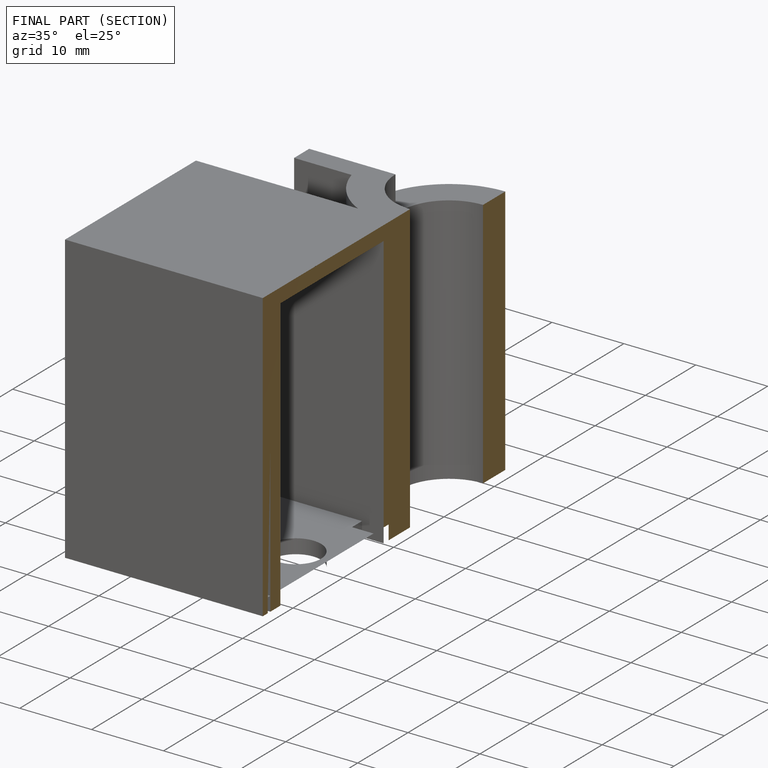
[diagram: finished part — half-section view (interior)]
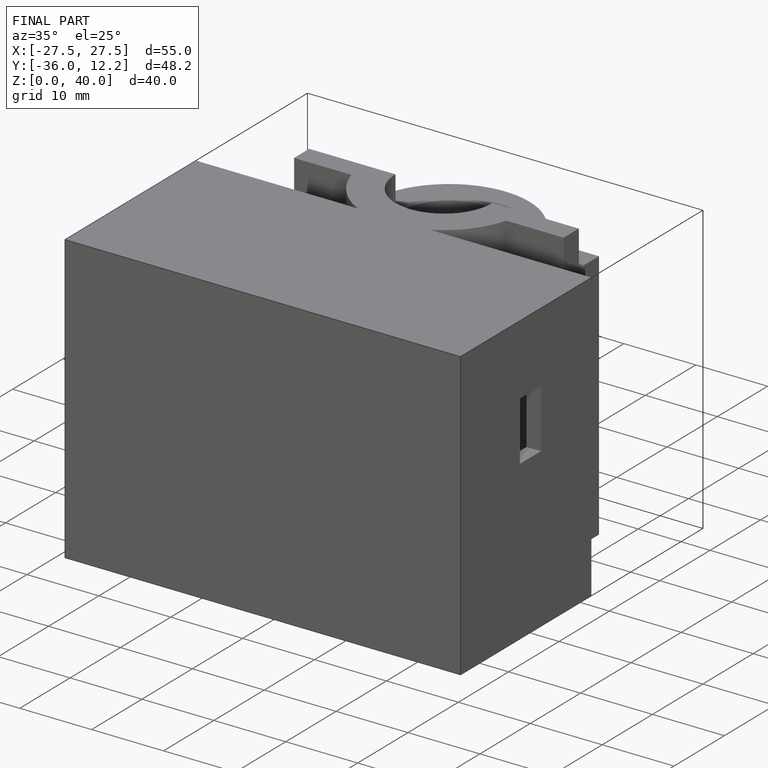
[diagram: finished part — iso view with bounding-box wireframe]
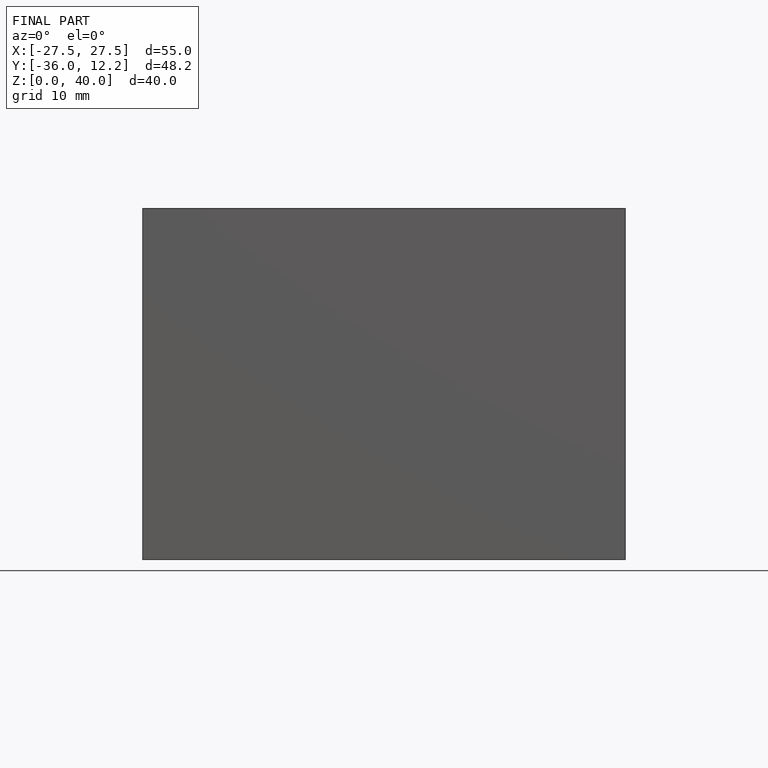
[diagram: finished part — front view with bounding-box wireframe]
